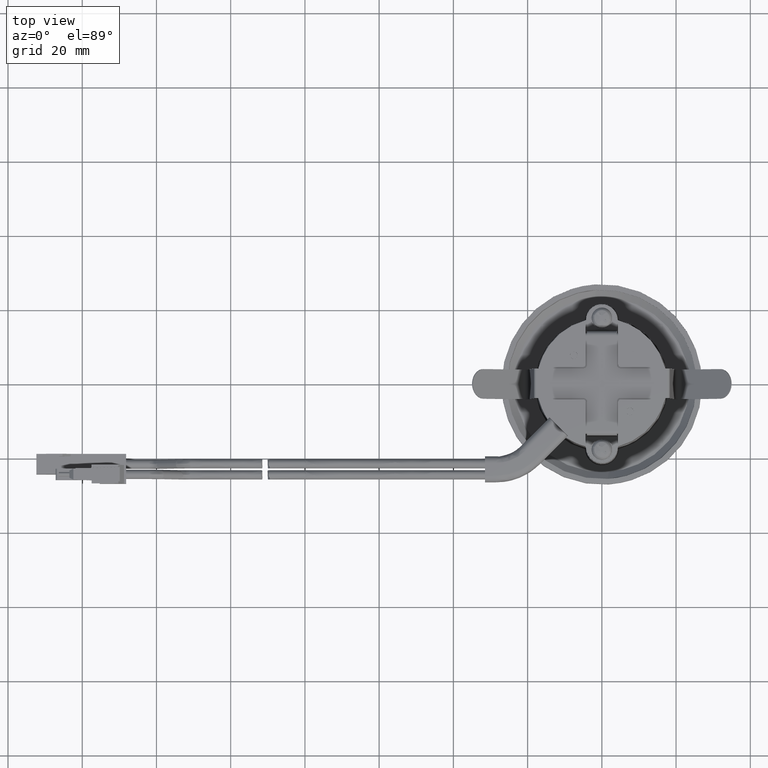
[diagram: clean part render]
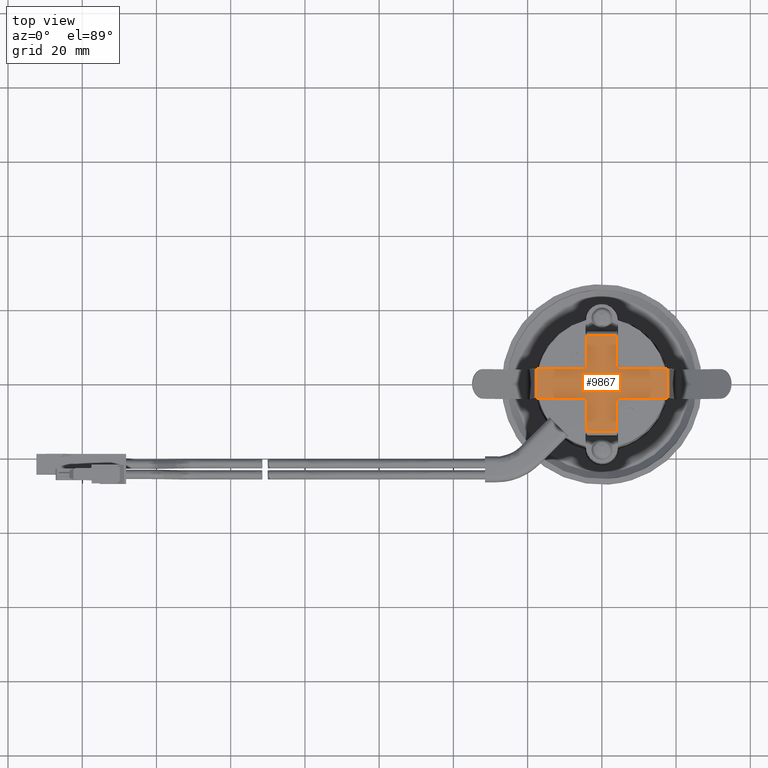
[diagram: same view with one face highlighted and labeled with its STEP entity id]
A machine part, top view. The second image highlights one B-rep face of the part: STEP entity #9867.
In plain terms, the highlighted face is a freeform B-spline surface patch.
Its self-contained STEP definition (entity closure, byte-faithful):
#8558=CARTESIAN_POINT('',(17.633467530392402,-3.999999999999780,20.899999999996851));
#8559=VERTEX_POINT('',#8558);
#8560=CARTESIAN_POINT('',(5.000000000008201,-3.999999999999800,20.899999999998450));
#8561=VERTEX_POINT('',#8560);
#8562=CARTESIAN_POINT('',(17.633467530392402,-3.999999999999780,20.899999999996851));
#8563=CARTESIAN_POINT('',(5.000000000008201,-3.999999999999800,20.899999999998450));
#8564=QUASI_UNIFORM_CURVE('',1,(#8562,#8563),.UNSPECIFIED.,.F.,.U.);
#8565=EDGE_CURVE('',#8559,#8561,#8564,.T.);
#8817=CARTESIAN_POINT('',(4.000000000008201,-4.999999999999780,20.899999999998450));
#8818=VERTEX_POINT('',#8817);
#8819=CARTESIAN_POINT('',(4.000000000008201,-4.999999999999780,20.899999999998450));
#8820=CARTESIAN_POINT('',(4.000000000008201,-3.999999999999800,20.899999999998496));
#8821=CARTESIAN_POINT('',(5.000000000008201,-3.999999999999800,20.899999999998499));
#8829=(BOUNDED_CURVE()B_SPLINE_CURVE(2,(#8819,#8820,#8821),.UNSPECIFIED.,.F.,.U.)CURVE()GEOMETRIC_REPRESENTATION_ITEM()QUASI_UNIFORM_CURVE()RATIONAL_B_SPLINE_CURVE((1.0,0.707106781186548,1.0))REPRESENTATION_ITEM(''));
#8830=EDGE_CURVE('',#8818,#8561,#8829,.T.);
#8854=CARTESIAN_POINT('',(-4.999999999991800,-3.999999999999800,20.899999999998499));
#8855=VERTEX_POINT('',#8854);
#8856=CARTESIAN_POINT('',(-3.999999999991800,-4.999999999999821,20.899999999998450));
#8857=VERTEX_POINT('',#8856);
#8858=CARTESIAN_POINT('',(-4.999999999991800,-3.999999999999800,20.899999999998499));
#8859=CARTESIAN_POINT('',(-3.999999999991800,-3.999999999999800,20.899999999998496));
#8860=CARTESIAN_POINT('',(-3.999999999991800,-4.999999999999800,20.899999999998499));
#8868=(BOUNDED_CURVE()B_SPLINE_CURVE(2,(#8858,#8859,#8860),.UNSPECIFIED.,.F.,.U.)CURVE()GEOMETRIC_REPRESENTATION_ITEM()QUASI_UNIFORM_CURVE()RATIONAL_B_SPLINE_CURVE((1.0,0.707106781186548,1.0))REPRESENTATION_ITEM(''));
#8869=EDGE_CURVE('',#8855,#8857,#8868,.T.);
#8912=CARTESIAN_POINT('',(4.000000000008055,-12.850000000000000,20.899999999998450));
#8913=VERTEX_POINT('',#8912);
#8929=CARTESIAN_POINT('',(-3.999999999991945,-12.850000000000000,20.899999999998450));
#8930=VERTEX_POINT('',#8929);
#8931=CARTESIAN_POINT('',(-3.999999999991945,-12.850000000000000,20.899999999998450));
#8932=CARTESIAN_POINT('',(4.000000000008055,-12.850000000000000,20.899999999998450));
#8933=QUASI_UNIFORM_CURVE('',1,(#8931,#8932),.UNSPECIFIED.,.F.,.U.);
#8934=EDGE_CURVE('',#8930,#8913,#8933,.T.);
#9326=CARTESIAN_POINT('',(4.000000000008055,-12.850000000000000,20.899999999998450));
#9327=CARTESIAN_POINT('',(4.000000000008201,-4.999999999999780,20.899999999998450));
#9328=QUASI_UNIFORM_CURVE('',1,(#9326,#9327),.UNSPECIFIED.,.F.,.U.);
#9329=EDGE_CURVE('',#8913,#8818,#9328,.T.);
#9348=CARTESIAN_POINT('',(-3.999999999991800,-4.999999999999821,20.899999999998450));
#9349=CARTESIAN_POINT('',(-3.999999999991945,-12.850000000000000,20.899999999998450));
#9350=QUASI_UNIFORM_CURVE('',1,(#9348,#9349),.UNSPECIFIED.,.F.,.U.);
#9351=EDGE_CURVE('',#8857,#8930,#9350,.T.);
#9382=CARTESIAN_POINT('',(-17.633467530393649,-3.999999999999780,20.899999999998549));
#9383=VERTEX_POINT('',#9382);
#9384=CARTESIAN_POINT('',(-4.999999999991800,-3.999999999999800,20.899999999998499));
#9385=CARTESIAN_POINT('',(-17.633467530393649,-3.999999999999780,20.899999999998549));
#9386=QUASI_UNIFORM_CURVE('',1,(#9384,#9385),.UNSPECIFIED.,.F.,.U.);
#9387=EDGE_CURVE('',#8855,#9383,#9386,.T.);
#9443=CARTESIAN_POINT('',(-4.999999999991621,3.999999999998835,20.899999999998499));
#9444=VERTEX_POINT('',#9443);
#9445=CARTESIAN_POINT('',(-17.633467530393649,3.999999999998785,20.899999999998549));
#9446=VERTEX_POINT('',#9445);
#9447=CARTESIAN_POINT('',(-4.999999999991621,3.999999999998835,20.899999999998499));
#9448=CARTESIAN_POINT('',(-17.633467530393649,3.999999999998785,20.899999999998549));
#9449=QUASI_UNIFORM_CURVE('',1,(#9447,#9448),.UNSPECIFIED.,.F.,.U.);
#9450=EDGE_CURVE('',#9444,#9446,#9449,.T.);
#9781=CARTESIAN_POINT('',(-17.633467530393649,3.999999999998785,20.899999999998549));
#9782=CARTESIAN_POINT('',(-17.633467530393649,-3.999999999999780,20.899999999998549));
#9783=QUASI_UNIFORM_CURVE('',1,(#9781,#9782),.UNSPECIFIED.,.F.,.U.);
#9784=EDGE_CURVE('',#9446,#9383,#9783,.T.);
#9791=CARTESIAN_POINT('',(-19.395050868325750,-14.133714950188420,20.899999999998450));
#9792=CARTESIAN_POINT('',(19.395051814257410,-14.133714950188420,20.899999999998450));
#9793=CARTESIAN_POINT('',(-19.395050868325750,14.133715639516250,20.899999999998450));
#9794=CARTESIAN_POINT('',(19.395051814257410,14.133715639516250,20.899999999998450));
#9795=B_SPLINE_SURFACE_WITH_KNOTS('',1,1,((#9791,#9793),(#9792,#9794)),.UNSPECIFIED.,.F.,.F.,.U.,(2,2),(2,2),(0.0,38.790102682583168),(0.0,28.267430589704670),.UNSPECIFIED.);
#9796=CARTESIAN_POINT('',(17.633467530392402,3.999999999998785,20.899999999996851));
#9797=VERTEX_POINT('',#9796);
#9798=CARTESIAN_POINT('',(5.000000000008390,3.999999999998835,20.899999999998450));
#9799=VERTEX_POINT('',#9798);
#9800=CARTESIAN_POINT('',(17.633467530392402,3.999999999998785,20.899999999996851));
#9801=CARTESIAN_POINT('',(5.000000000008390,3.999999999998835,20.899999999998450));
#9802=QUASI_UNIFORM_CURVE('',1,(#9800,#9801),.UNSPECIFIED.,.F.,.U.);
#9803=EDGE_CURVE('',#9797,#9799,#9802,.T.);
#9804=ORIENTED_EDGE('',*,*,#9803,.T.);
#9805=CARTESIAN_POINT('',(4.000000000008385,4.999999999998850,20.899999999998450));
#9806=VERTEX_POINT('',#9805);
#9807=CARTESIAN_POINT('',(5.000000000008390,3.999999999998835,20.899999999998450));
#9808=CARTESIAN_POINT('',(4.819891884196975,3.999474663148445,20.899999999998450));
#9809=CARTESIAN_POINT('',(4.509578807178249,4.086307803958214,20.899999999998499));
#9810=CARTESIAN_POINT('',(4.225378957681964,4.343968032315836,20.899999999998411));
#9811=CARTESIAN_POINT('',(4.047863105092788,4.640172542981091,20.899999999998592));
#9812=CARTESIAN_POINT('',(3.999781601804116,4.852683294377710,20.899999999998350));
#9813=CARTESIAN_POINT('',(4.000000000008385,4.999999999998850,20.899999999998450));
#9814=B_SPLINE_CURVE_WITH_KNOTS('',3,(#9807,#9808,#9809,#9810,#9811,#9812,#9813),.UNSPECIFIED.,.F.,.U.,(4,1,1,1,4),(0.000000757074137,0.540026267860349,0.932698072638753,1.129111858257877,1.570953883423237),.UNSPECIFIED.);
#9815=EDGE_CURVE('',#9799,#9806,#9814,.T.);
#9816=ORIENTED_EDGE('',*,*,#9815,.T.);
#9817=CARTESIAN_POINT('',(4.000000000008530,12.850000000000120,20.899999999998450));
#9818=VERTEX_POINT('',#9817);
#9819=CARTESIAN_POINT('',(4.000000000008385,4.999999999998850,20.899999999998450));
#9820=CARTESIAN_POINT('',(4.000000000008530,12.850000000000120,20.899999999998450));
#9821=QUASI_UNIFORM_CURVE('',1,(#9819,#9820),.UNSPECIFIED.,.F.,.U.);
#9822=EDGE_CURVE('',#9806,#9818,#9821,.T.);
#9823=ORIENTED_EDGE('',*,*,#9822,.T.);
#9824=CARTESIAN_POINT('',(-3.999999999991470,12.850000000000000,20.899999999998450));
#9825=VERTEX_POINT('',#9824);
#9826=CARTESIAN_POINT('',(4.000000000008530,12.850000000000120,20.899999999998450));
#9827=CARTESIAN_POINT('',(-3.999999999991470,12.850000000000000,20.899999999998450));
#9828=QUASI_UNIFORM_CURVE('',1,(#9826,#9827),.UNSPECIFIED.,.F.,.U.);
#9829=EDGE_CURVE('',#9818,#9825,#9828,.T.);
#9830=ORIENTED_EDGE('',*,*,#9829,.T.);
#9831=CARTESIAN_POINT('',(-3.999999999991615,4.999999999998821,20.899999999998450));
#9832=VERTEX_POINT('',#9831);
#9833=CARTESIAN_POINT('',(-3.999999999991470,12.850000000000000,20.899999999998450));
#9834=CARTESIAN_POINT('',(-3.999999999991615,4.999999999998821,20.899999999998450));
#9835=QUASI_UNIFORM_CURVE('',1,(#9833,#9834),.UNSPECIFIED.,.F.,.U.);
#9836=EDGE_CURVE('',#9825,#9832,#9835,.T.);
#9837=ORIENTED_EDGE('',*,*,#9836,.T.);
#9838=CARTESIAN_POINT('',(-3.999999999991615,4.999999999998821,20.899999999998450));
#9839=CARTESIAN_POINT('',(-3.999999999991620,3.999999999998830,20.899999999998496));
#9840=CARTESIAN_POINT('',(-4.999999999991621,3.999999999998830,20.899999999998499));
#9848=(BOUNDED_CURVE()B_SPLINE_CURVE(2,(#9838,#9839,#9840),.UNSPECIFIED.,.F.,.U.)CURVE()GEOMETRIC_REPRESENTATION_ITEM()QUASI_UNIFORM_CURVE()RATIONAL_B_SPLINE_CURVE((1.0,0.707106781186548,1.0))REPRESENTATION_ITEM(''));
#9849=EDGE_CURVE('',#9832,#9444,#9848,.T.);
#9850=ORIENTED_EDGE('',*,*,#9849,.T.);
#9851=ORIENTED_EDGE('',*,*,#9450,.T.);
#9852=ORIENTED_EDGE('',*,*,#9784,.T.);
#9853=ORIENTED_EDGE('',*,*,#9387,.F.);
#9854=ORIENTED_EDGE('',*,*,#8869,.T.);
#9855=ORIENTED_EDGE('',*,*,#9351,.T.);
#9856=ORIENTED_EDGE('',*,*,#8934,.T.);
#9857=ORIENTED_EDGE('',*,*,#9329,.T.);
#9858=ORIENTED_EDGE('',*,*,#8830,.T.);
#9859=ORIENTED_EDGE('',*,*,#8565,.F.);
#9860=CARTESIAN_POINT('',(17.633467530392402,3.999999999998785,20.899999999996851));
#9861=CARTESIAN_POINT('',(17.633467530392402,-3.999999999999780,20.899999999996851));
#9862=QUASI_UNIFORM_CURVE('',1,(#9860,#9861),.UNSPECIFIED.,.F.,.U.);
#9863=EDGE_CURVE('',#9797,#8559,#9862,.T.);
#9864=ORIENTED_EDGE('',*,*,#9863,.F.);
#9865=EDGE_LOOP('',(#9804,#9816,#9823,#9830,#9837,#9850,#9851,#9852,#9853,#9854,#9855,#9856,#9857,#9858,#9859,#9864));
#9866=FACE_OUTER_BOUND('',#9865,.T.);
#9867=ADVANCED_FACE('',(#9866),#9795,.T.);